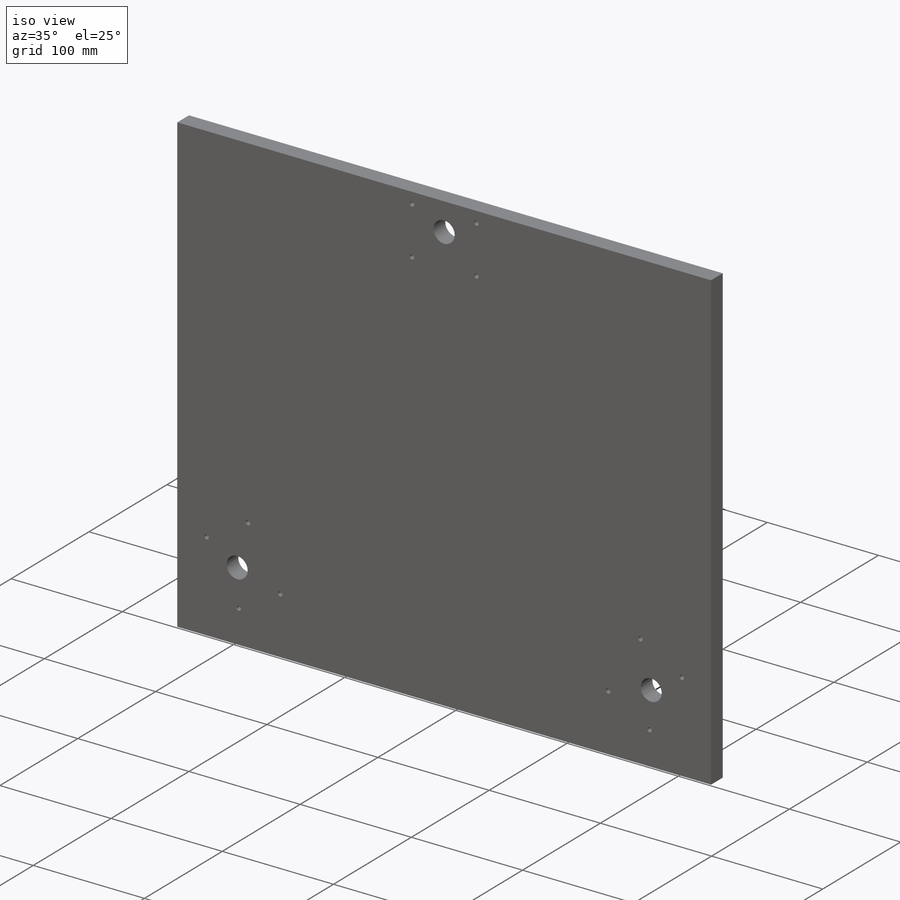
[diagram: iso view]
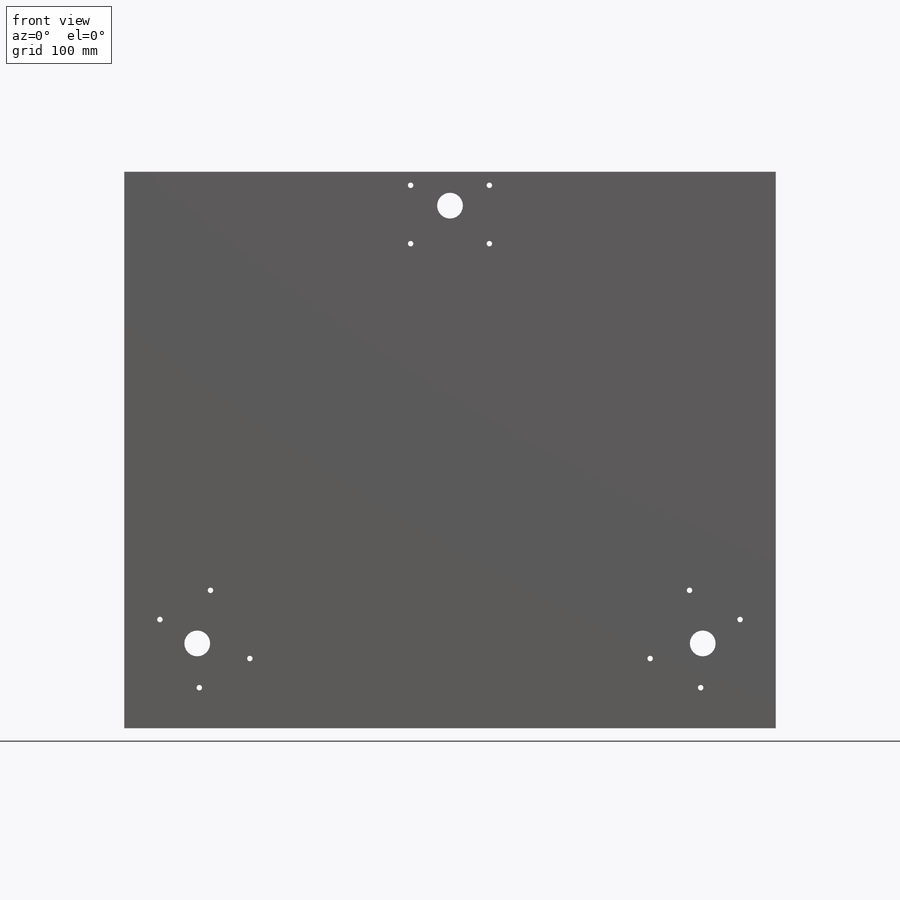
[diagram: front view]
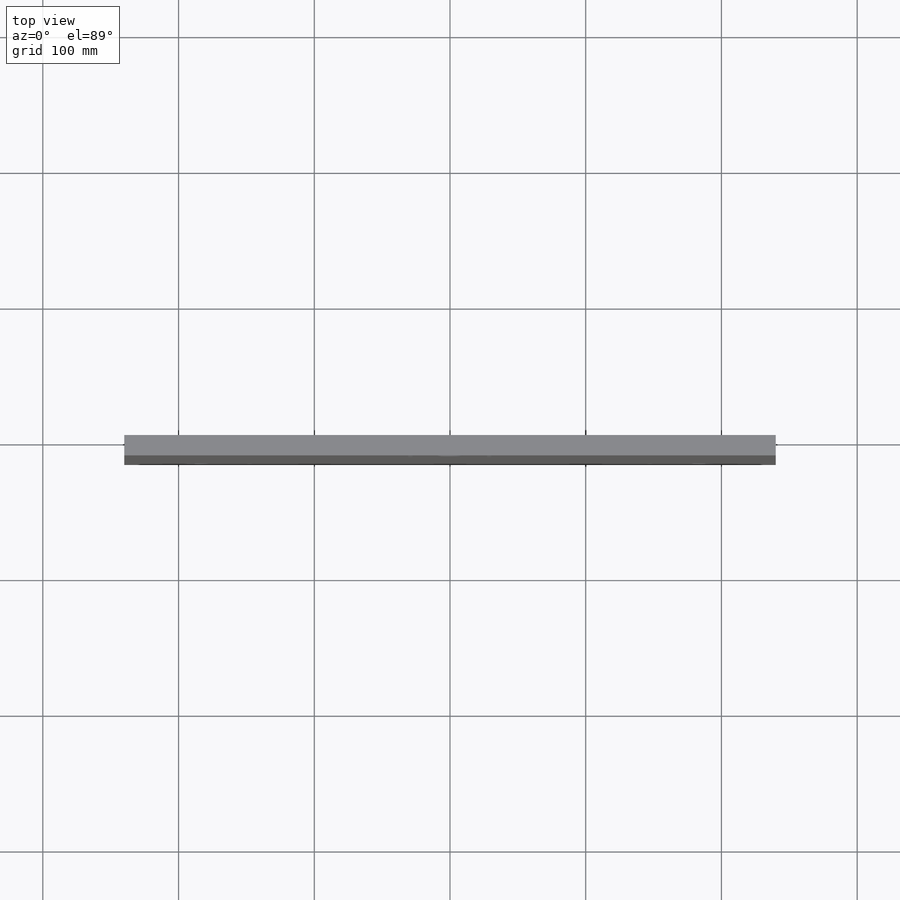
[diagram: top view]
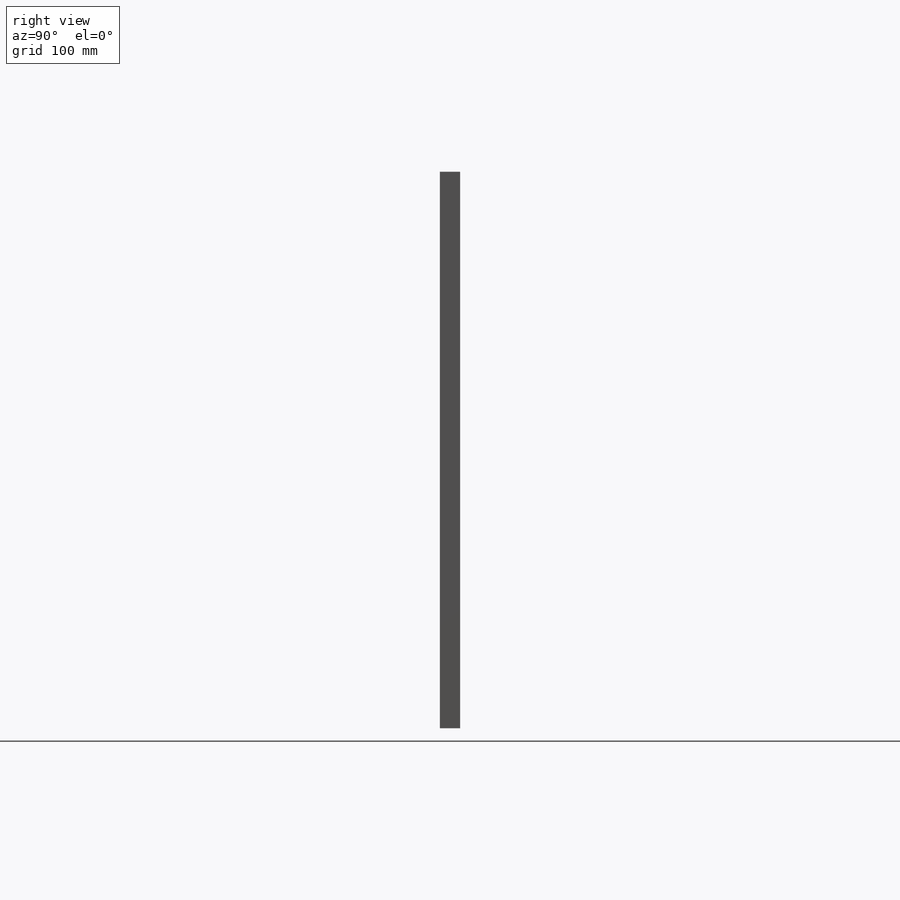
[diagram: right view]
SOLIDWORKS PART (.sldprt)
format: sldprt  version: not decoded by parser v0  size: 1,359,872 bytes
history: native  units: mm
features: sketch x10, extrude x7, cut_extrude x2, pattern_circular x2, material x1 (+13 scaffold rows collapsed)
feature tree (35):
  scaffold x13  (default folders/planes/origin — collapsed)
  material  "Beech"
  sketch  "Sketch1"  dims[c1.D1=~176.246972mm c1.D2=~183.571521mm c2.D1=480.0mm c2.D2=365.0mm c2.D3=240.0mm c2.D4=165.0mm c3.D2=170.0mm c3.D4=410.0mm]
  extrude  "Boss-Extrude1"  Depth=15mm
  sketch  "Sketch4"  dims[c1.D2=250.0mm c1.D3=~290.112299mm c1.D1=125.0mm c2.D3=120.0mm c2.D4=125.0mm c2.D1=1.0mm c2.D5=2.0mm c2.D6=1.0mm c2.D7=5.0mm]
  sketch  "Sketch7"  dims[c1.D1=~335.952039mm c1.D4=250.0mm c1.D5=~294.054303mm c2.D1=125.0mm c2.D2=125.0mm c3.D2=120.0deg c3.D3=~109.357955mm c4.D3=120.0deg c4.D5=125.0mm c4.D6=~1.339891mm]
  extrude  "Cut-Extrude-Thin10"  Depth=1mm
  sketch  "Sketch2"  dims[c1.D1=~24.86614mm c1.D2=~245.018638mm c1.D3=~246.903397mm c2.D2=200.0mm]
  extrude  "Cut-Extrude-Thin3"  Depth=1mm
  extrude  "Cut-Extrude-Thin4"  [1 undecoded]
  sketch  "Sketch2<3>"  dims[D1=1.0mm D5=2.0mm D6=1.0mm D7=5.0mm]
  extrude  "Cut-Extrude-Thin5"  [1 undecoded]
  sketch  "Sketch2<4>"  dims[D1=1.0mm D5=2.0mm D6=1.0mm D7=5.0mm]
  extrude  "Cut-Extrude-Thin6"  [1 undecoded]
  sketch  "Sketch2<5>"  dims[D1=1.0mm D5=2.0mm D6=1.0mm D7=5.0mm]
  sketch  "Sketch6"  dims[c1.D1=18.0mm c1.D2=18.0mm c1.D3=18.0mm c2.D1=~3.653033mm c2.D2=~3.653033mm c2.D3=4.0mm c2.D5=19.0mm c2.D6=18.0mm c2.D7=4.0mm c3.D1=~267.50864mm c3.D2=20.0mm c4.D1=30.0mm c4.D2=58.0mm c4.D4=215.0mm c4.D6=~17.275154mm c4.D7=~11.572808mm c5.D6=25.0mm c5.D1=15.0mm c5.D7=15.0mm]
  cut_extrude  "Cut-Extrude1"  [1 undecoded]
  cut_extrude  "Cut-Extrude3"  [1 undecoded]
  sketch  "Sketch6<5>"
  pattern_circular  "CirPattern1"  Count=3 Angle=90deg
  pattern_circular  "CirPattern2"  Count=6 Angle=30deg
  sketch  "Sketch8"  dims[D1=~87.600627mm D2=~471.000952mm]
  extrude  "Boss-Extrude2"  [1 undecoded]
decode coverage: 14 of 21 modeling features carry decoded parameters
note: ~ marks probable driven/reference dimensions
note: 6 parameter values undecoded
summary: no parameter record found for 6 features
note: suppression state not decoded; provenance and decode notes live in map.json
